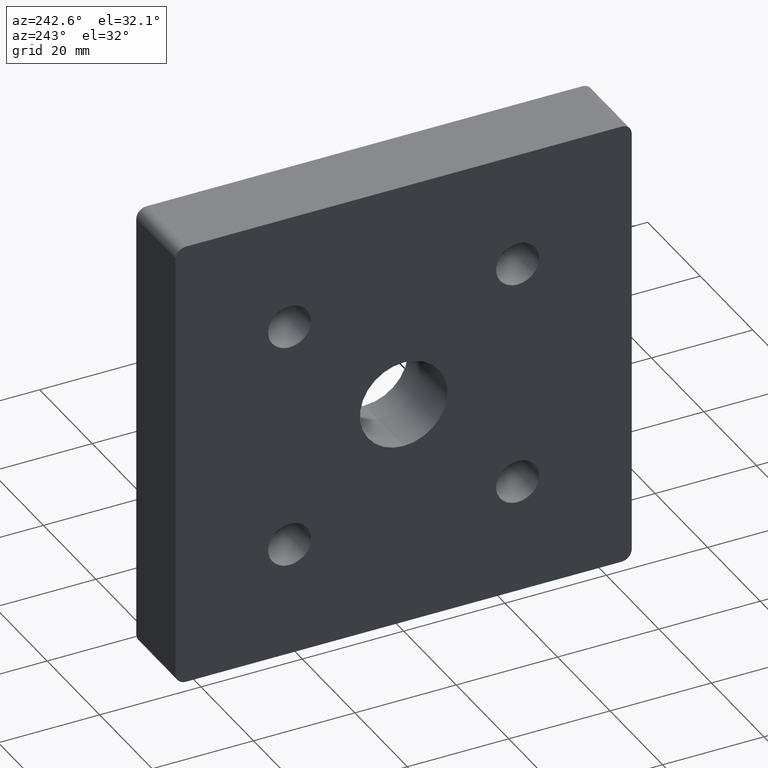
[diagram: clean part render]
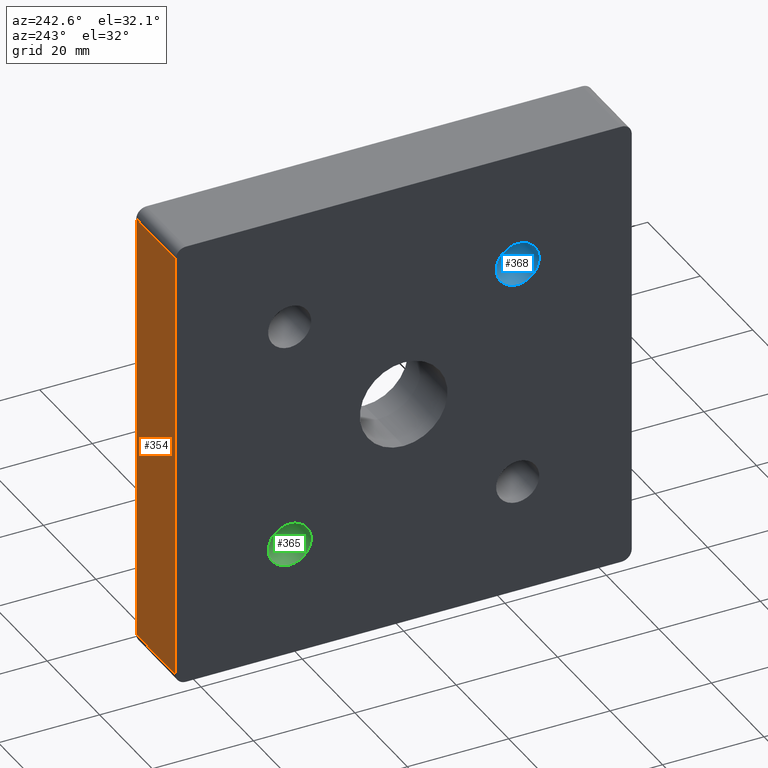
[diagram: same view with three faces highlighted in distinct colors, each labeled with its STEP entity id]
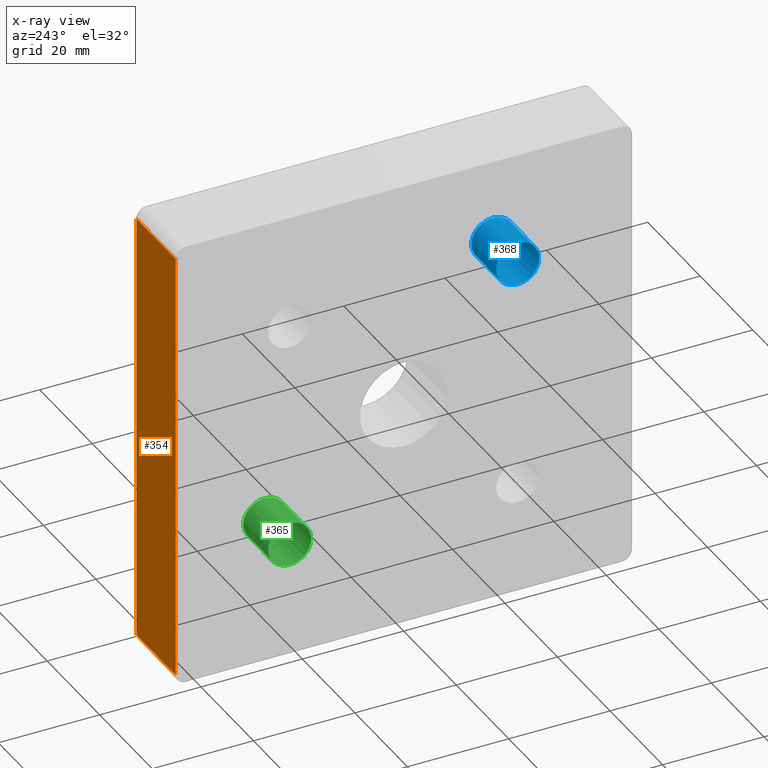
[diagram: x-ray of the same camera — body ghosted, the three highlighted faces saturated]
A machine part, auxiliary view with three faces highlighted in distinct colors.
The next image is the same camera in x-ray (body ghosted, the three faces saturated) — at least one of them is partly hidden behind the body in this view.
Their STEP definitions:

[orange] entity #354 — the highlighted planar face has unit normal (0, 1, 0).
#41=PLANE('',#391);
#54=FACE_OUTER_BOUND('',#82,.T.);
#82=EDGE_LOOP('',(#284,#285,#286,#287));
#123=LINE('',#560,#139);
#128=LINE('',#587,#144);
#129=LINE('',#590,#145);
#130=LINE('',#591,#146);
#139=VECTOR('',#442,86.);
#144=VECTOR('',#471,15.);
#145=VECTOR('',#474,15.);
#146=VECTOR('',#475,86.);
#182=VERTEX_POINT('',#557);
#183=VERTEX_POINT('',#559);
#193=VERTEX_POINT('',#585);
#194=VERTEX_POINT('',#589);
#218=EDGE_CURVE('',#183,#182,#123,.T.);
#232=EDGE_CURVE('',#183,#193,#128,.T.);
#233=EDGE_CURVE('',#194,#182,#129,.T.);
#234=EDGE_CURVE('',#193,#194,#130,.T.);
#284=ORIENTED_EDGE('',*,*,#232,.F.);
#285=ORIENTED_EDGE('',*,*,#218,.T.);
#286=ORIENTED_EDGE('',*,*,#233,.F.);
#287=ORIENTED_EDGE('',*,*,#234,.F.);
#354=ADVANCED_FACE('',(#54),#41,.T.);
#391=AXIS2_PLACEMENT_3D('',#588,#472,#473);
#442=DIRECTION('',(0.,0.,1.));
#471=DIRECTION('',(1.,0.,0.));
#472=DIRECTION('center_axis',(0.,1.,0.));
#473=DIRECTION('ref_axis',(0.,0.,1.));
#474=DIRECTION('',(-1.,0.,0.));
#475=DIRECTION('',(0.,0.,1.));
#557=CARTESIAN_POINT('',(0.,45.,43.));
#559=CARTESIAN_POINT('',(0.,45.,-43.));
#560=CARTESIAN_POINT('',(0.,45.,-45.));
#585=CARTESIAN_POINT('',(15.,45.,-43.));
#587=CARTESIAN_POINT('',(0.,45.,-43.));
#588=CARTESIAN_POINT('Origin',(0.,45.,-45.));
#589=CARTESIAN_POINT('',(15.,45.,43.));
#590=CARTESIAN_POINT('',(0.,45.,43.));
#591=CARTESIAN_POINT('',(15.,45.,-45.));

[blue] entity #368 — the highlighted cylindrical surface (bore or boss wall) has radius 4.25 mm, axis along (1, 0, 0).
#32=FACE_BOUND('',#109,.T.);
#68=FACE_OUTER_BOUND('',#108,.T.);
#108=EDGE_LOOP('',(#316));
#109=EDGE_LOOP('',(#317));
#158=CIRCLE('',#385,4.25);
#173=CIRCLE('',#416,4.25);
#190=VERTEX_POINT('',#574);
#207=VERTEX_POINT('',#629);
#226=EDGE_CURVE('',#190,#190,#158,.T.);
#248=EDGE_CURVE('',#207,#207,#173,.T.);
#316=ORIENTED_EDGE('',*,*,#226,.F.);
#317=ORIENTED_EDGE('',*,*,#248,.T.);
#347=CYLINDRICAL_SURFACE('',#419,4.25);
#368=ADVANCED_FACE('',(#68,#32),#347,.F.);
#385=AXIS2_PLACEMENT_3D('',#575,#456,#457);
#416=AXIS2_PLACEMENT_3D('',#630,#525,#526);
#419=AXIS2_PLACEMENT_3D('',#634,#531,#532);
#456=DIRECTION('center_axis',(1.,0.,0.));
#457=DIRECTION('ref_axis',(0.,0.,-1.));
#525=DIRECTION('center_axis',(1.,0.,0.));
#526=DIRECTION('ref_axis',(0.,0.,-1.));
#531=DIRECTION('center_axis',(1.,0.,0.));
#532=DIRECTION('ref_axis',(0.,0.,-1.));
#574=CARTESIAN_POINT('',(0.,-22.5,26.75));
#575=CARTESIAN_POINT('Origin',(0.,-22.5,22.5));
#629=CARTESIAN_POINT('',(9.49999999999999,-22.5,26.75));
#630=CARTESIAN_POINT('Origin',(9.49999999999999,-22.5,22.5));
#634=CARTESIAN_POINT('Origin',(-113.160056179763,-22.5,22.5));

[green] entity #365 — the highlighted cylindrical surface (bore or boss wall) has radius 4.25 mm, axis along (1, 0, 0).
#29=FACE_BOUND('',#103,.T.);
#65=FACE_OUTER_BOUND('',#102,.T.);
#102=EDGE_LOOP('',(#310));
#103=EDGE_LOOP('',(#311));
#157=CIRCLE('',#384,4.25);
#170=CIRCLE('',#410,4.25);
#189=VERTEX_POINT('',#572);
#204=VERTEX_POINT('',#620);
#225=EDGE_CURVE('',#189,#189,#157,.T.);
#245=EDGE_CURVE('',#204,#204,#170,.T.);
#310=ORIENTED_EDGE('',*,*,#225,.F.);
#311=ORIENTED_EDGE('',*,*,#245,.T.);
#345=CYLINDRICAL_SURFACE('',#413,4.25);
#365=ADVANCED_FACE('',(#65,#29),#345,.F.);
#384=AXIS2_PLACEMENT_3D('',#573,#454,#455);
#410=AXIS2_PLACEMENT_3D('',#621,#513,#514);
#413=AXIS2_PLACEMENT_3D('',#625,#519,#520);
#454=DIRECTION('center_axis',(1.,0.,0.));
#455=DIRECTION('ref_axis',(0.,0.,-1.));
#513=DIRECTION('center_axis',(1.,0.,0.));
#514=DIRECTION('ref_axis',(0.,0.,-1.));
#519=DIRECTION('center_axis',(1.,0.,0.));
#520=DIRECTION('ref_axis',(0.,0.,-1.));
#572=CARTESIAN_POINT('',(0.,22.5,-18.25));
#573=CARTESIAN_POINT('Origin',(0.,22.5,-22.5));
#620=CARTESIAN_POINT('',(9.49999999999999,22.5,-18.25));
#621=CARTESIAN_POINT('Origin',(9.49999999999999,22.5,-22.5));
#625=CARTESIAN_POINT('Origin',(-113.160056179763,22.5,-22.5));